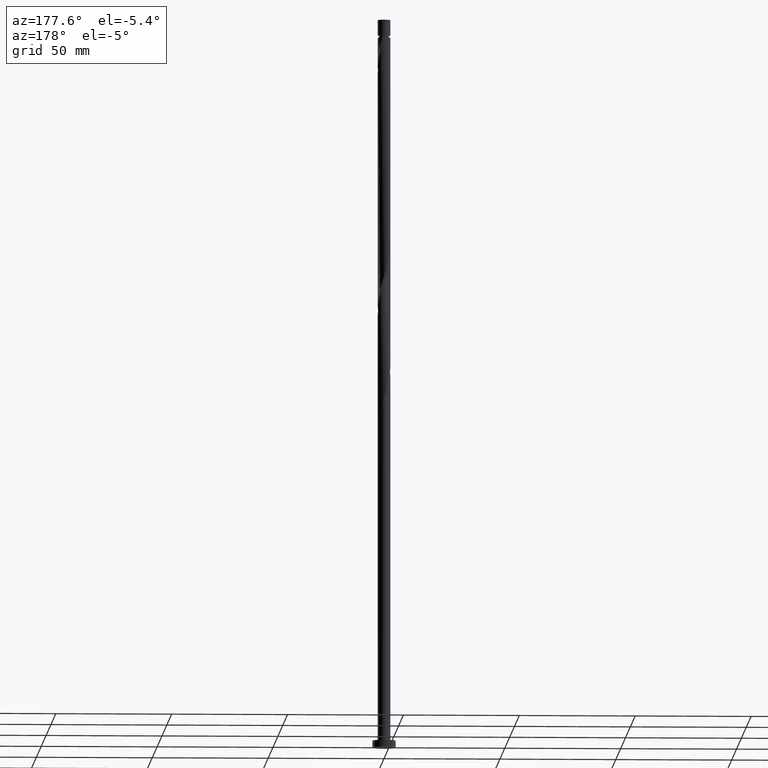
[diagram: clean part render]
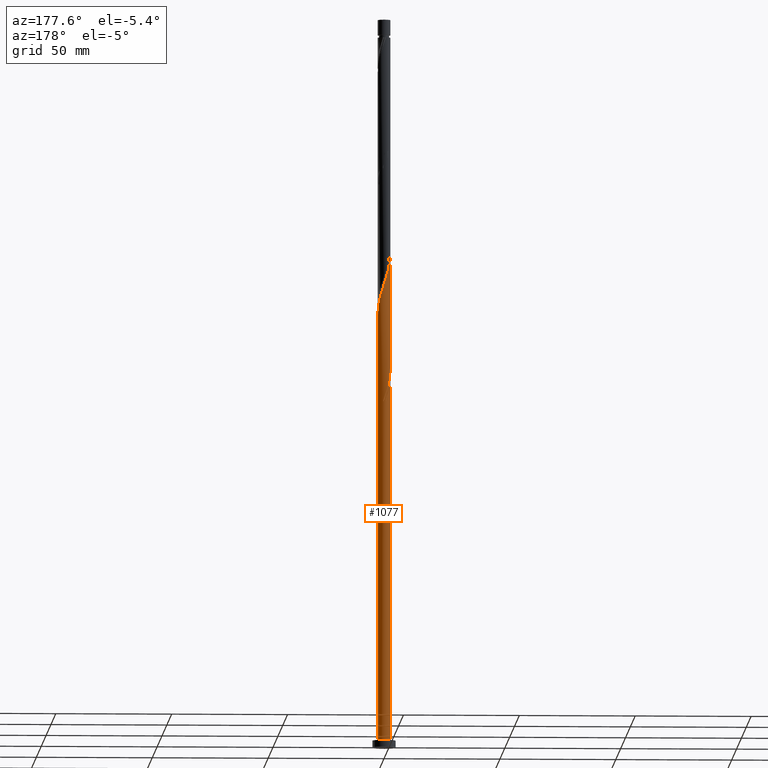
[diagram: same view with one face highlighted and labeled with its STEP entity id]
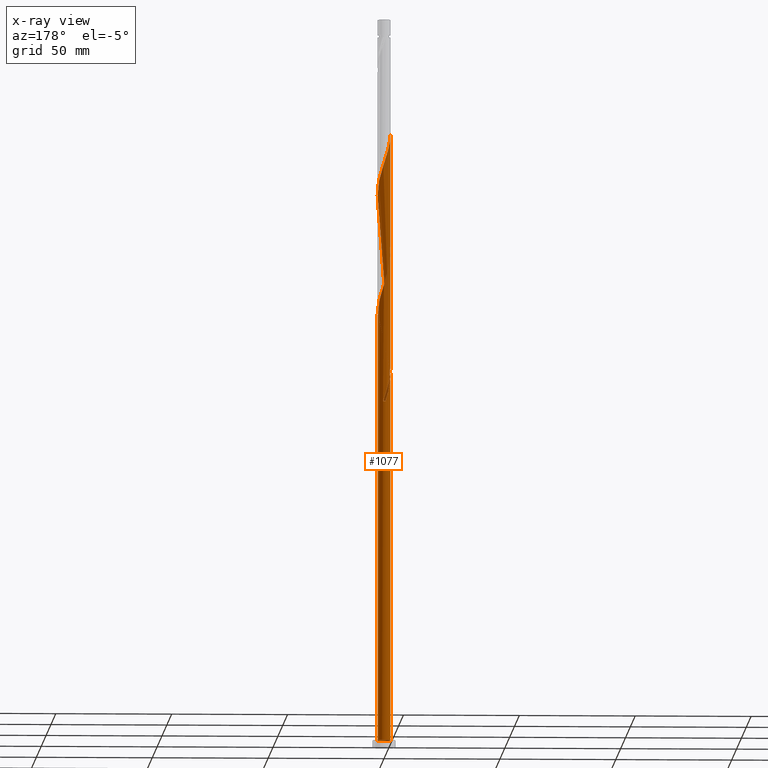
[diagram: x-ray of the same camera — body ghosted, the highlighted face saturated]
A machine part, auxiliary view. The second image highlights one B-rep face of the part: STEP entity #1077.
The next image is the same camera in x-ray: the body ghosted, the highlighted face saturated — about 0% of this face is hidden behind the body in this view.
In plain terms, the highlighted cylindrical surface (bore or boss wall) has radius 2.75 mm, axis along (-0, -0, -1).
Its self-contained STEP definition (entity closure, byte-faithful):
#8 = CARTESIAN_POINT ( 'NONE',  ( -0.8508966634394435902, 2.633340512163637737, 203.2838897088758188 ) ) ;
#33 = CARTESIAN_POINT ( 'NONE',  ( 2.589353908558133188, -0.9766031543515221180, 184.5338897088758188 ) ) ;
#49 = CARTESIAN_POINT ( 'NONE',  ( -2.665550977269772748, 0.6762676892889233349, 159.2213897088758756 ) ) ;
#53 = CARTESIAN_POINT ( 'NONE',  ( -2.750000000000000000, 0.000000000000000000, 3.000000000000000000 ) ) ;
#55 = CARTESIAN_POINT ( 'NONE',  ( -2.003367594109888739, -1.909195031348285720, 220.1588897088757903 ) ) ;
#68 = CARTESIAN_POINT ( 'NONE',  ( -2.448236331258788923, 1.252453139364712476, 157.3463897088758472 ) ) ;
#77 = CARTESIAN_POINT ( 'NONE',  ( 1.252453139364712920, 2.448236331258788034, 249.2213897088759040 ) ) ;
#99 = CARTESIAN_POINT ( 'NONE',  ( -1.662365664554718236, 2.190671220724271784, 206.0963897088758756 ) ) ;
#109 = CARTESIAN_POINT ( 'NONE',  ( -1.133216480600296228, 2.505657679751145839, 204.2213897088758756 ) ) ;
#115 = CARTESIAN_POINT ( 'NONE',  ( -2.448236331258788923, 1.252453139364712476, 262.3463897088759040 ) ) ;
#124 = ORIENTED_EDGE ( 'NONE', *, *, #1334, .F. ) ;
#125 = VECTOR ( 'NONE', #169, 1000.000000000000000 ) ;
#135 = CARTESIAN_POINT ( 'NONE',  ( -2.750000000000003997, -2.343346442879561564E-15, 161.2968726309698297 ) ) ;
#145 = CARTESIAN_POINT ( 'NONE',  ( 1.133216480600296228, -2.505657679751146727, 177.9713897088758756 ) ) ;
#151 = CARTESIAN_POINT ( 'NONE',  ( -2.589353908558133188, 0.9766031543515217850, 263.2838897088757903 ) ) ;
#154 = CARTESIAN_POINT ( 'NONE',  ( 2.307118753959442436, -1.528303124377901723, 182.6588897088757903 ) ) ;
#169 = DIRECTION ( 'NONE',  ( -0.000000000000000000, -0.000000000000000000, -1.000000000000000000 ) ) ;
#193 = CARTESIAN_POINT ( 'NONE',  ( -2.108156892653864745, 1.765835359243896452, 155.4713897088758756 ) ) ;
#194 = EDGE_CURVE ( 'NONE', #241, #947, #777, .T. ) ;
#212 = CARTESIAN_POINT ( 'NONE',  ( -0.5472430904086438286, 2.695000000000002505, 149.8463897088758472 ) ) ;
#213 = CARTESIAN_POINT ( 'NONE',  ( 1.909195031348285720, -2.003367594109888739, 233.2838897088757903 ) ) ;
#241 = VERTEX_POINT ( 'NONE', #346 ) ;
#247 = CARTESIAN_POINT ( 'NONE',  ( 1.765835359243896674, 2.108156892653864745, 247.3463897088758756 ) ) ;
#254 = CARTESIAN_POINT ( 'NONE',  ( -2.741748045981409643, 0.3759322242263234415, 212.6588897088757903 ) ) ;
#260 = CARTESIAN_POINT ( 'NONE',  ( 0.000000000000000000, 0.000000000000000000, 315.0000000000000000 ) ) ;
#273 = CARTESIAN_POINT ( 'NONE',  ( 0.3759322242263239966, 2.741748045981408310, 199.5338897088758188 ) ) ;
#281 = DIRECTION ( 'NONE',  ( -0.000000000000000000, -0.000000000000000000, -1.000000000000000000 ) ) ;
#298 = CARTESIAN_POINT ( 'NONE',  ( -1.252453139364712476, -2.448236331258788034, 170.4713897088759040 ) ) ;
#299 = EDGE_CURVE ( 'NONE', #711, #965, #1151, .T. ) ;
#319 = CARTESIAN_POINT ( 'NONE',  ( 1.415536297761148310, -2.377974847338651720, 178.9088897088758472 ) ) ;
#335 = CARTESIAN_POINT ( 'NONE',  ( 0.9766031543515225621, 2.589353908558133188, 250.1588897088757335 ) ) ;
#346 = CARTESIAN_POINT ( 'NONE',  ( 2.750000000000000000, 0.000000000000000000, 3.000000000000000000 ) ) ;
#347 = CARTESIAN_POINT ( 'NONE',  ( -2.505657679751145839, -1.133216480600296228, 217.3463897088759040 ) ) ;
#352 = CARTESIAN_POINT ( 'NONE',  ( -0.6762676892889212255, 2.665550977269768751, 153.5963897088758188 ) ) ;
#356 = CARTESIAN_POINT ( 'NONE',  ( -2.750000000000003997, -2.343346442879561564E-15, 161.2968726309698297 ) ) ;
#357 = CARTESIAN_POINT ( 'NONE',  ( -0.06617135342423963174, -2.749203766908889346, 226.7213897088758756 ) ) ;
#362 = CARTESIAN_POINT ( 'NONE',  ( -1.765835359243892677, 2.108156892653862080, 157.3463897088758472 ) ) ;
#368 = ORIENTED_EDGE ( 'NONE', *, *, #1259, .T. ) ;
#371 = CARTESIAN_POINT ( 'NONE',  ( -1.252453139364709367, 2.448236331258784926, 155.4713897088758756 ) ) ;
#374 = CARTESIAN_POINT ( 'NONE',  ( -1.415536297761148754, 2.377974847338651720, 205.1588897088758188 ) ) ;
#387 = CARTESIAN_POINT ( 'NONE',  ( 2.377974847338651720, 1.415536297761147866, 244.5338897088757903 ) ) ;
#388 = CARTESIAN_POINT ( 'NONE',  ( 0.8508966634394434791, -2.633340512163637737, 229.5338897088757619 ) ) ;
#390 = CARTESIAN_POINT ( 'NONE',  ( -1.909195031348286165, 2.003367594109888739, 207.0338897088757619 ) ) ;
#397 = CARTESIAN_POINT ( 'NONE',  ( 0.6762676892889234459, 2.665550977269772748, 251.0963897088758472 ) ) ;
#404 = CARTESIAN_POINT ( 'NONE',  ( -2.750000000000003997, -2.343346442879561564E-15, 161.2968726309698297 ) ) ;
#411 = CYLINDRICAL_SURFACE ( 'NONE', #768, 2.750000000000000000 ) ;
#416 = VERTEX_POINT ( 'NONE', #1403 ) ;
#420 = ORIENTED_EDGE ( 'NONE', *, *, #1027, .F. ) ;
#422 = CARTESIAN_POINT ( 'NONE',  ( 0.9766031543515225621, 2.589353908558133188, 197.6588897088758188 ) ) ;
#433 = CIRCLE ( 'NONE', #1117, 2.750000000000000000 ) ;
#434 = CARTESIAN_POINT ( 'NONE',  ( -0.2435895173778441503, 2.756659487836366829, 201.4088897088758188 ) ) ;
#444 = EDGE_CURVE ( 'NONE', #965, #947, #1253, .T. ) ;
#450 = CARTESIAN_POINT ( 'NONE',  ( -2.750000000000003109, 0.03309046720758679339, 266.1965099427447399 ) ) ;
#454 = DIRECTION ( 'NONE',  ( -0.000000000000000000, -0.000000000000000000, -1.000000000000000000 ) ) ;
#462 = CARTESIAN_POINT ( 'NONE',  ( 2.633340512163637737, 0.8508966634394432571, 190.1588897088758188 ) ) ;
#472 = CARTESIAN_POINT ( 'NONE',  ( -2.633340512163637737, -0.8508966634394435902, 216.4088897088757619 ) ) ;
#482 = CARTESIAN_POINT ( 'NONE',  ( -2.741748045981409643, 0.3759322242263234415, 160.1588897088757903 ) ) ;
#484 =( BOUNDED_CURVE ( )  B_SPLINE_CURVE ( 2, ( #807, #1633, #1309, #633, #1175, #931, #1207, #1039, #362, #523, #371, #791, #352, #1477, #912, #780, #767 ),
 .UNSPECIFIED., .F., .T. ) 
 B_SPLINE_CURVE_WITH_KNOTS ( ( 3, 2, 2, 2, 2, 2, 2, 2, 3 ),
 ( 0.9295303401299220836, 0.9375000000000000000, 0.9464285714285713969, 0.9553571428571429047, 0.9642857142857143016, 0.9732142857142856984, 0.9821428571428570953, 0.9910714285714286031, 1.000000000000000000 ),
 .UNSPECIFIED. ) 
 CURVE ( )  GEOMETRIC_REPRESENTATION_ITEM ( )  RATIONAL_B_SPLINE_CURVE ( ( 0.9079949616362152920, 0.9039886423360783407, 0.9090909090909452539, 0.9033747362666200154, 0.9090909090909452539, 0.9033747362666200154, 0.9090909090909452539, 0.9033747362666200154, 0.9090909090909452539, 0.9033747362666200154, 0.9090909090909452539, 0.9033747362666200154, 0.9090909090909452539, 0.9033747362666200154, 0.9090909090909452539, 0.9033747362666200154, 0.9090909090909452539 ) ) 
 REPRESENTATION_ITEM ( '' )  );
#499 = CARTESIAN_POINT ( 'NONE',  ( -2.589353908558133188, 0.9766031543515217850, 158.2838897088758188 ) ) ;
#501 = CARTESIAN_POINT ( 'NONE',  ( -1.528303124377901501, -2.307118753959442436, 222.0338897088757335 ) ) ;
#523 = CARTESIAN_POINT ( 'NONE',  ( -1.528303124377899946, 2.307118753959439772, 156.4088897088758472 ) ) ;
#526 = CARTESIAN_POINT ( 'NONE',  ( 2.749203766908889346, -0.06617135342423986766, 239.8463897088759040 ) ) ;
#537 = CARTESIAN_POINT ( 'NONE',  ( -2.633340512163637737, -0.8508966634394435902, 163.9088897088757903 ) ) ;
#541 = CARTESIAN_POINT ( 'NONE',  ( -2.108156892653864745, 1.765835359243896452, 207.9713897088758756 ) ) ;
#548 = CARTESIAN_POINT ( 'NONE',  ( 0.000000000000000000, 0.000000000000000000, 3.000000000000000000 ) ) ;
#557 = VERTEX_POINT ( 'NONE', #1802 ) ;
#560 = DIRECTION ( 'NONE',  ( 1.000000000000000000, 0.000000000000000000, 0.000000000000000000 ) ) ;
#573 = CARTESIAN_POINT ( 'NONE',  ( 2.749203766908889346, -0.06617135342423986766, 187.3463897088758472 ) ) ;
#587 = CARTESIAN_POINT ( 'NONE',  ( -2.108156892653864745, 1.765835359243896452, 260.4713897088759040 ) ) ;
#592 = CARTESIAN_POINT ( 'NONE',  ( 1.765835359243896674, 2.108156892653864745, 194.8463897088758756 ) ) ;
#599 = CARTESIAN_POINT ( 'NONE',  ( 2.756659487836366829, 0.2435895173778442335, 188.2838897088757619 ) ) ;
#621 = LINE ( 'NONE', #1570, #125 ) ;
#633 = CARTESIAN_POINT ( 'NONE',  ( -2.633340512163635072, 0.8508966634394432571, 162.0338897088758472 ) ) ;
#638 = CARTESIAN_POINT ( 'NONE',  ( -1.909195031348286165, 2.003367594109888739, 154.5338897088758188 ) ) ;
#659 = CARTESIAN_POINT ( 'NONE',  ( 2.695000000000002505, 0.5472430904086440506, 241.7213897088759325 ) ) ;
#663 = CARTESIAN_POINT ( 'NONE',  ( -2.003367594109888739, -1.909195031348285720, 167.6588897088758472 ) ) ;
#669 = CARTESIAN_POINT ( 'NONE',  ( -2.589353908558133188, 0.9766031543515217850, 210.7838897088757903 ) ) ;
#674 = FACE_OUTER_BOUND ( 'NONE', #1799, .T. ) ;
#687 = CARTESIAN_POINT ( 'NONE',  ( -2.750000000000002220, -0.2763853991962879064, 162.1351437099333737 ) ) ;
#693 = CARTESIAN_POINT ( 'NONE',  ( -2.307118753959442436, 1.528303124377901501, 261.4088897088757335 ) ) ;
#696 = CARTESIAN_POINT ( 'NONE',  ( 0.06617135342423995092, 2.749203766908889346, 200.4713897088759040 ) ) ;
#708 = CARTESIAN_POINT ( 'NONE',  ( -0.8508966634394435902, 2.633340512163637737, 255.7838897088757335 ) ) ;
#711 = VERTEX_POINT ( 'NONE', #1528 ) ;
#721 = CARTESIAN_POINT ( 'NONE',  ( -0.06617135342423963174, -2.749203766908889346, 174.2213897088758756 ) ) ;
#729 = CARTESIAN_POINT ( 'NONE',  ( 0.2435895173778444001, -2.756659487836365940, 227.6588897088757619 ) ) ;
#737 = CARTESIAN_POINT ( 'NONE',  ( 2.190671220724272672, 1.662365664554717792, 192.9713897088758756 ) ) ;
#745 = CARTESIAN_POINT ( 'NONE',  ( -2.307118753959442436, 1.528303124377901501, 156.4088897088757903 ) ) ;
#766 = VERTEX_POINT ( 'NONE', #1433 ) ;
#767 = CARTESIAN_POINT ( 'NONE',  ( 0.5472430904086447168, 2.694999999999998508, 149.8463897088758472 ) ) ;
#768 = AXIS2_PLACEMENT_3D ( 'NONE', #260, #281, #1387 ) ;
#770 = CARTESIAN_POINT ( 'NONE',  ( -1.662365664554718236, 2.190671220724271784, 153.5963897088759325 ) ) ;
#771 = CARTESIAN_POINT ( 'NONE',  ( 2.108156892653864745, -1.765835359243896674, 234.2213897088758756 ) ) ;
#777 = CIRCLE ( 'NONE', #1761, 2.750000000000000000 ) ;
#780 = CARTESIAN_POINT ( 'NONE',  ( 0.2435895173778448719, 2.756659487836362832, 150.7838897088758756 ) ) ;
#791 = CARTESIAN_POINT ( 'NONE',  ( -0.9766031543515204527, 2.589353908558131412, 154.5338897088758756 ) ) ;
#798 = ORIENTED_EDGE ( 'NONE', *, *, #194, .T. ) ;
#807 = CARTESIAN_POINT ( 'NONE',  ( -2.749999999999999556, 2.951571713881759338E-15, 164.6459067867818931 ) ) ;
#811 = CARTESIAN_POINT ( 'NONE',  ( 1.528303124377901723, 2.307118753959442436, 248.2838897088757903 ) ) ;
#814 = CARTESIAN_POINT ( 'NONE',  ( -1.765835359243896674, -2.108156892653864745, 168.5963897088758756 ) ) ;
#819 = CARTESIAN_POINT ( 'NONE',  ( -2.749203766908889346, 0.06617135342423942357, 213.5963897088758756 ) ) ;
#831 = AXIS2_PLACEMENT_3D ( 'NONE', #1012, #1715, #1587 ) ;
#842 = CARTESIAN_POINT ( 'NONE',  ( -1.415536297761148754, 2.377974847338651720, 257.6588897088757903 ) ) ;
#843 = CARTESIAN_POINT ( 'NONE',  ( 1.252453139364712920, 2.448236331258788034, 196.7213897088759040 ) ) ;
#850 = CARTESIAN_POINT ( 'NONE',  ( -2.750000000000003553, 1.899304680614166734E-15, 266.2968726309698013 ) ) ;
#854 = CARTESIAN_POINT ( 'NONE',  ( 0.5472430904086440506, -2.695000000000002505, 176.0963897088759040 ) ) ;
#857 = ORIENTED_EDGE ( 'NONE', *, *, #1132, .F. ) ;
#866 = CARTESIAN_POINT ( 'NONE',  ( -0.9766031543515221180, -2.589353908558133188, 171.4088897088757903 ) ) ;
#877 = CARTESIAN_POINT ( 'NONE',  ( 1.909195031348285720, -2.003367594109888739, 180.7838897088757903 ) ) ;
#886 = CARTESIAN_POINT ( 'NONE',  ( 0.8508966634394434791, -2.633340512163637737, 177.0338897088757619 ) ) ;
#900 = CARTESIAN_POINT ( 'NONE',  ( -1.765835359243896674, -2.108156892653864745, 221.0963897088758756 ) ) ;
#907 = CARTESIAN_POINT ( 'NONE',  ( -0.8508966634394435902, 2.633340512163637737, 150.7838897088757619 ) ) ;
#908 = CARTESIAN_POINT ( 'NONE',  ( -0.9766031543515221180, -2.589353908558133188, 223.9088897088757619 ) ) ;
#912 = CARTESIAN_POINT ( 'NONE',  ( -0.06617135342423884070, 2.749203766908884905, 151.7213897088758472 ) ) ;
#915 = CARTESIAN_POINT ( 'NONE',  ( 0.5472430904086440506, -2.695000000000002505, 228.5963897088758756 ) ) ;
#923 = CARTESIAN_POINT ( 'NONE',  ( 1.415536297761148310, -2.377974847338651720, 231.4088897088757903 ) ) ;
#931 = CARTESIAN_POINT ( 'NONE',  ( -2.377974847338649944, 1.415536297761147866, 160.1588897088758756 ) ) ;
#947 = VERTEX_POINT ( 'NONE', #53 ) ;
#954 = CARTESIAN_POINT ( 'NONE',  ( 2.003367594109889183, 1.909195031348285498, 246.4088897088757619 ) ) ;
#965 = VERTEX_POINT ( 'NONE', #404 ) ;
#981 = CARTESIAN_POINT ( 'NONE',  ( -0.5472430904086439396, 2.695000000000002505, 254.8463897088759040 ) ) ;
#983 = ORIENTED_EDGE ( 'NONE', *, *, #444, .T. ) ;
#1002 = CARTESIAN_POINT ( 'NONE',  ( -1.662365664554718236, 2.190671220724271784, 258.5963897088759040 ) ) ;
#1012 = CARTESIAN_POINT ( 'NONE',  ( 0.000000000000000000, 0.000000000000000000, 3.000000000000000000 ) ) ;
#1027 = EDGE_CURVE ( 'NONE', #965, #557, #1453, .T. ) ;
#1030 = CARTESIAN_POINT ( 'NONE',  ( -2.750000000000003997, 0.03309046720756954330, 161.1965099427447399 ) ) ;
#1031 = CARTESIAN_POINT ( 'NONE',  ( -2.190671220724271784, -1.662365664554717792, 219.2213897088758756 ) ) ;
#1036 = CARTESIAN_POINT ( 'NONE',  ( -2.377974847338651720, -1.415536297761148310, 218.2838897088757903 ) ) ;
#1039 = CARTESIAN_POINT ( 'NONE',  ( -2.003367594109886074, 1.909195031348284610, 158.2838897088758472 ) ) ;
#1060 = CARTESIAN_POINT ( 'NONE',  ( 2.307118753959442436, -1.528303124377901723, 235.1588897088757051 ) ) ;
#1077 = ADVANCED_FACE ( 'NONE', ( #674 ), #411, .T. ) ;
#1093 = CARTESIAN_POINT ( 'NONE',  ( -2.448236331258788923, 1.252453139364712476, 209.8463897088759325 ) ) ;
#1113 = CARTESIAN_POINT ( 'NONE',  ( 2.505657679751146727, 1.133216480600296228, 191.0963897088758756 ) ) ;
#1117 = AXIS2_PLACEMENT_3D ( 'NONE', #1421, #1569, #1677 ) ;
#1120 = CARTESIAN_POINT ( 'NONE',  ( -2.750000000000000000, 0.000000000000000000, 315.0000000000000000 ) ) ;
#1127 = CARTESIAN_POINT ( 'NONE',  ( -2.749203766908889346, 0.06617135342423942357, 266.0963897088759609 ) ) ;
#1132 = EDGE_CURVE ( 'NONE', #557, #766, #621, .T. ) ;
#1141 = CARTESIAN_POINT ( 'NONE',  ( 2.695000000000002505, 0.5472430904086440506, 189.2213897088759325 ) ) ;
#1145 = CARTESIAN_POINT ( 'NONE',  ( 0.3759322242263239966, 2.741748045981408310, 252.0338897088757335 ) ) ;
#1150 = CARTESIAN_POINT ( 'NONE',  ( 1.528303124377901723, 2.307118753959442436, 195.7838897088758756 ) ) ;
#1151 =( BOUNDED_CURVE ( )  B_SPLINE_CURVE ( 2, ( #212, #907, #1431, #1282, #770, #638, #193, #745, #68, #499, #49, #482, #1160, #1030, #356 ),
 .UNSPECIFIED., .F., .T. ) 
 B_SPLINE_CURVE_WITH_KNOTS ( ( 3, 2, 2, 2, 2, 2, 2, 3 ),
 ( 0.000000000000000000, 0.008928571428571396851, 0.01785714285714290472, 0.02678571428571430157, 0.03571428571428569843, 0.04464285714285709528, 0.05357142857142860315, 0.05453034012992214602 ),
 .UNSPECIFIED. ) 
 CURVE ( )  GEOMETRIC_REPRESENTATION_ITEM ( )  RATIONAL_B_SPLINE_CURVE ( ( 0.9090909090909509160, 0.9033747362666260106, 0.9090909090909509160, 0.9033747362666260106, 0.9090909090909509160, 0.9033747362666260106, 0.9090909090909509160, 0.9033747362666260106, 0.9090909090909509160, 0.9033747362666260106, 0.9090909090909509160, 0.9033747362666260106, 0.9090909090909509160, 0.9084770030214925907, 0.9079949616362208431 ) ) 
 REPRESENTATION_ITEM ( '' )  );
#1160 = CARTESIAN_POINT ( 'NONE',  ( -2.749203766908889346, 0.06617135342423942357, 161.0963897088759040 ) ) ;
#1175 = CARTESIAN_POINT ( 'NONE',  ( -2.505657679751142286, 1.133216480600295117, 161.0963897088758756 ) ) ;
#1200 = CARTESIAN_POINT ( 'NONE',  ( 2.633340512163637737, 0.8508966634394432571, 242.6588897088757903 ) ) ;
#1203 = CARTESIAN_POINT ( 'NONE',  ( -0.2435895173778441503, 2.756659487836366829, 253.9088897088757051 ) ) ;
#1207 = CARTESIAN_POINT ( 'NONE',  ( -2.190671220724267787, 1.662365664554715794, 159.2213897088758472 ) ) ;
#1211 = CARTESIAN_POINT ( 'NONE',  ( 2.190671220724272672, 1.662365664554717792, 245.4713897088758756 ) ) ;
#1222 = CARTESIAN_POINT ( 'NONE',  ( -2.756659487836365940, -0.2435895173778445943, 214.5338897088757619 ) ) ;
#1229 = CARTESIAN_POINT ( 'NONE',  ( -2.665550977269772748, 0.6762676892889233349, 264.2213897088759040 ) ) ;
#1234 = CARTESIAN_POINT ( 'NONE',  ( -2.695000000000002505, -0.5472430904086440506, 162.9713897088758472 ) ) ;
#1252 = CARTESIAN_POINT ( 'NONE',  ( -1.133216480600296228, 2.505657679751145839, 256.7213897088759040 ) ) ;
#1253 = LINE ( 'NONE', #1120, #1789 ) ;
#1259 = EDGE_CURVE ( 'NONE', #947, #241, #1612, .T. ) ;
#1266 = CARTESIAN_POINT ( 'NONE',  ( 2.665550977269772748, -0.6762676892889233349, 185.4713897088758756 ) ) ;
#1275 = CARTESIAN_POINT ( 'NONE',  ( 1.662365664554717792, -2.190671220724271784, 179.8463897088758472 ) ) ;
#1282 = CARTESIAN_POINT ( 'NONE',  ( -1.415536297761148754, 2.377974847338651720, 152.6588897088758188 ) ) ;
#1284 = CARTESIAN_POINT ( 'NONE',  ( 2.003367594109889183, 1.909195031348285498, 193.9088897088757903 ) ) ;
#1306 = CARTESIAN_POINT ( 'NONE',  ( 0.06617135342423995092, 2.749203766908889346, 252.9713897088759325 ) ) ;
#1309 = CARTESIAN_POINT ( 'NONE',  ( -2.694999999999998952, 0.5472430904086440506, 162.9713897088758472 ) ) ;
#1332 = CARTESIAN_POINT ( 'NONE',  ( 2.741748045981408310, -0.3759322242263239411, 238.9088897088757903 ) ) ;
#1334 = EDGE_CURVE ( 'NONE', #766, #416, #484, .T. ) ;
#1350 = CARTESIAN_POINT ( 'NONE',  ( 1.133216480600296228, -2.505657679751146727, 230.4713897088759040 ) ) ;
#1351 = CARTESIAN_POINT ( 'NONE',  ( -2.307118753959442436, 1.528303124377901501, 208.9088897088757903 ) ) ;
#1355 = CARTESIAN_POINT ( 'NONE',  ( -1.528303124377901501, -2.307118753959442436, 169.5338897088758188 ) ) ;
#1360 = CARTESIAN_POINT ( 'NONE',  ( 2.448236331258788034, -1.252453139364712920, 236.0963897088759040 ) ) ;
#1368 = ORIENTED_EDGE ( 'NONE', *, *, #299, .F. ) ;
#1379 = CARTESIAN_POINT ( 'NONE',  ( -0.6762676892889233349, -2.665550977269772748, 172.3463897088759040 ) ) ;
#1387 = DIRECTION ( 'NONE',  ( -1.000000000000000000, 0.000000000000000000, 0.000000000000000000 ) ) ;
#1389 = CARTESIAN_POINT ( 'NONE',  ( 2.741748045981408310, -0.3759322242263239411, 186.4088897088758188 ) ) ;
#1403 = CARTESIAN_POINT ( 'NONE',  ( 0.5472430904086446057, 2.694999999999998508, 149.8463897088758472 ) ) ;
#1411 = ORIENTED_EDGE ( 'NONE', *, *, #1716, .T. ) ;
#1416 = CARTESIAN_POINT ( 'NONE',  ( 2.108156892653864745, -1.765835359243896674, 181.7213897088759040 ) ) ;
#1421 = CARTESIAN_POINT ( 'NONE',  ( 0.000000000000000000, 0.000000000000000000, 149.8463897088758472 ) ) ;
#1424 = CARTESIAN_POINT ( 'NONE',  ( -2.695000000000002505, -0.5472430904086440506, 215.4713897088759040 ) ) ;
#1425 = CARTESIAN_POINT ( 'NONE',  ( 2.377974847338651720, 1.415536297761147866, 192.0338897088758188 ) ) ;
#1431 = CARTESIAN_POINT ( 'NONE',  ( -1.133216480600296228, 2.505657679751145839, 151.7213897088758472 ) ) ;
#1433 = CARTESIAN_POINT ( 'NONE',  ( -2.749999999999999556, 2.951571713881759338E-15, 164.6459067867818931 ) ) ;
#1447 = CARTESIAN_POINT ( 'NONE',  ( -0.6762676892889233349, -2.665550977269772748, 224.8463897088759040 ) ) ;
#1453 =( BOUNDED_CURVE ( )  B_SPLINE_CURVE ( 2, ( #135, #687, #1234, #537, #1498, #1665, #1483, #663, #814, #1355, #298, #866, #1379, #1700, #721, #1672, #854, #886, #145, #319, #1275, #877, #1416, #154, #1554, #33, #1266, #1389, #573, #599, #1141, #462, #1113, #1425, #737, #1284, #592, #1150, #843, #422, #1521, #273, #696, #434, #1529, #8, #109, #374, #99, #390, #541, #1351, #1093, #669, #1504, #254, #819, #1222, #1424, #472, #347, #1036, #1031, #55, #900, #501, #1720, #908, #1447, #1598, #357, #729, #915, #388, #1350, #923, #1748, #213, #771, #1060, #1360, #1597, #1643, #1332, #526, #1485, #659, #1200, #1772, #387, #1211, #954, #247, #811, #77, #335, #397, #1145, #1306, #1203, #981, #708, #1252, #842, #1002, #1662, #587, #693, #115, #151, #1229, #1793, #1127, #450, #850 ),
 .UNSPECIFIED., .F., .T. ) 
 B_SPLINE_CURVE_WITH_KNOTS ( ( 3, 2, 2, 2, 2, 2, 2, 2, 2, 2, 2, 2, 2, 2, 2, 2, 2, 2, 2, 2, 2, 2, 2, 2, 2, 2, 2, 2, 2, 2, 2, 2, 2, 2, 2, 2, 2, 2, 2, 2, 2, 2, 2, 2, 2, 2, 2, 2, 2, 2, 2, 2, 2, 2, 2, 2, 2, 3 ),
 ( 0.05453034012992213908, 0.06250000000000000000, 0.07142857142857139685, 0.08035714285714290472, 0.08928571428571430157, 0.09821428571428569843, 0.1071428571428570953, 0.1160714285714286031, 0.1250000000000000000, 0.1339285714285713969, 0.1428571428571429047, 0.1517857142857143016, 0.1607142857142856984, 0.1696428571428570953, 0.1785714285714286031, 0.1875000000000000000, 0.1964285714285713969, 0.2053571428571429047, 0.2142857142857143016, 0.2232142857142856984, 0.2321428571428570953, 0.2410714285714286031, 0.2500000000000000000, 0.2589285714285713969, 0.2678571428571429047, 0.2767857142857143016, 0.2857142857142856984, 0.2946428571428570953, 0.3035714285714286031, 0.3125000000000000000, 0.3214285714285713969, 0.3303571428571429047, 0.3392857142857143016, 0.3482142857142856984, 0.3571428571428570953, 0.3660714285714286031, 0.3750000000000000000, 0.3839285714285713969, 0.3928571428571429047, 0.4017857142857143016, 0.4107142857142856984, 0.4196428571428570953, 0.4285714285714286031, 0.4375000000000000000, 0.4464285714285713969, 0.4553571428571429047, 0.4642857142857143016, 0.4732142857142856984, 0.4821428571428570953, 0.4910714285714286031, 0.5000000000000000000, 0.5089285714285713969, 0.5178571428571427937, 0.5267857142857143016, 0.5357142857142856984, 0.5446428571428572063, 0.5535714285714286031, 0.5545303401299216395 ),
 .UNSPECIFIED. ) 
 CURVE ( )  GEOMETRIC_REPRESENTATION_ITEM ( )  RATIONAL_B_SPLINE_CURVE ( ( 0.9079949616362208431, 0.9039886423360843359, 0.9090909090909509160, 0.9033747362666260106, 0.9090909090909509160, 0.9033747362666260106, 0.9090909090909509160, 0.9033747362666260106, 0.9090909090909509160, 0.9033747362666260106, 0.9090909090909509160, 0.9033747362666260106, 0.9090909090909509160, 0.9033747362666260106, 0.9090909090909509160, 0.9033747362666260106, 0.9090909090909509160, 0.9033747362666260106, 0.9090909090909509160, 0.9033747362666260106, 0.9090909090909509160, 0.9033747362666260106, 0.9090909090909509160, 0.9033747362666260106, 0.9090909090909509160, 0.9033747362666260106, 0.9090909090909509160, 0.9033747362666260106, 0.9090909090909509160, 0.9033747362666260106, 0.9090909090909509160, 0.9033747362666260106, 0.9090909090909509160, 0.9033747362666260106, 0.9090909090909509160, 0.9033747362666260106, 0.9090909090909509160, 0.9033747362666260106, 0.9090909090909509160, 0.9033747362666260106, 0.9090909090909509160, 0.9033747362666260106, 0.9090909090909509160, 0.9033747362666260106, 0.9090909090909509160, 0.9033747362666260106, 0.9090909090909509160, 0.9033747362666260106, 0.9090909090909509160, 0.9033747362666260106, 0.9090909090909509160, 0.9033747362666260106, 0.9090909090909509160, 0.9033747362666260106, 0.9090909090909509160, 0.9033747362666260106, 0.9090909090909509160, 0.9033747362666260106, 0.9090909090909509160, 0.9033747362666260106, 0.9090909090909509160, 0.9033747362666260106, 0.9090909090909509160, 0.9033747362666260106, 0.9090909090909509160, 0.9033747362666260106, 0.9090909090909509160, 0.9033747362666260106, 0.9090909090909509160, 0.9033747362666260106, 0.9090909090909509160, 0.9033747362666260106, 0.9090909090909509160, 0.9033747362666260106, 0.9090909090909509160, 0.9033747362666260106, 0.9090909090909509160, 0.9033747362666260106, 0.9090909090909509160, 0.9033747362666260106, 0.9090909090909509160, 0.9033747362666260106, 0.9090909090909509160, 0.9033747362666260106, 0.9090909090909509160, 0.9033747362666260106, 0.9090909090909509160, 0.9033747362666260106, 0.9090909090909509160, 0.9033747362666260106, 0.9090909090909509160, 0.9033747362666260106, 0.9090909090909509160, 0.9033747362666260106, 0.9090909090909509160, 0.9033747362666260106, 0.9090909090909509160, 0.9033747362666260106, 0.9090909090909509160, 0.9033747362666260106, 0.9090909090909509160, 0.9033747362666260106, 0.9090909090909509160, 0.9033747362666260106, 0.9090909090909509160, 0.9033747362666260106, 0.9090909090909509160, 0.9033747362666260106, 0.9090909090909509160, 0.9033747362666260106, 0.9090909090909509160, 0.9033747362666260106, 0.9090909090909509160, 0.9084770030214929237, 0.9079949616362215092 ) ) 
 REPRESENTATION_ITEM ( '' )  );
#1477 = CARTESIAN_POINT ( 'NONE',  ( -0.3759322242263226088, 2.741748045981406090, 152.6588897088758188 ) ) ;
#1483 = CARTESIAN_POINT ( 'NONE',  ( -2.190671220724271784, -1.662365664554717792, 166.7213897088759325 ) ) ;
#1485 = CARTESIAN_POINT ( 'NONE',  ( 2.756659487836366829, 0.2435895173778442335, 240.7838897088757335 ) ) ;
#1498 = CARTESIAN_POINT ( 'NONE',  ( -2.505657679751145839, -1.133216480600296228, 164.8463897088758756 ) ) ;
#1500 = ORIENTED_EDGE ( 'NONE', *, *, #444, .F. ) ;
#1504 = CARTESIAN_POINT ( 'NONE',  ( -2.665550977269772748, 0.6762676892889233349, 211.7213897088758472 ) ) ;
#1521 = CARTESIAN_POINT ( 'NONE',  ( 0.6762676892889234459, 2.665550977269772748, 198.5963897088758188 ) ) ;
#1528 = CARTESIAN_POINT ( 'NONE',  ( -0.5472430904086438286, 2.695000000000002949, 149.8463897088758472 ) ) ;
#1529 = CARTESIAN_POINT ( 'NONE',  ( -0.5472430904086439396, 2.695000000000002505, 202.3463897088759040 ) ) ;
#1543 = DIRECTION ( 'NONE',  ( 0.000000000000000000, 0.000000000000000000, 1.000000000000000000 ) ) ;
#1554 = CARTESIAN_POINT ( 'NONE',  ( 2.448236331258788034, -1.252453139364712920, 183.5963897088759040 ) ) ;
#1569 = DIRECTION ( 'NONE',  ( 0.000000000000000000, -0.000000000000000000, -1.000000000000000000 ) ) ;
#1570 = CARTESIAN_POINT ( 'NONE',  ( -2.750000000000000000, 0.000000000000000000, 315.0000000000000000 ) ) ;
#1587 = DIRECTION ( 'NONE',  ( 1.000000000000000000, 0.000000000000000000, 0.000000000000000000 ) ) ;
#1597 = CARTESIAN_POINT ( 'NONE',  ( 2.589353908558133188, -0.9766031543515221180, 237.0338897088757903 ) ) ;
#1598 = CARTESIAN_POINT ( 'NONE',  ( -0.3759322242263236635, -2.741748045981409643, 225.7838897088758188 ) ) ;
#1612 = CIRCLE ( 'NONE', #831, 2.750000000000000000 ) ;
#1633 = CARTESIAN_POINT ( 'NONE',  ( -2.749999999999999112, 0.2763853991962864076, 163.8076357078182923 ) ) ;
#1643 = CARTESIAN_POINT ( 'NONE',  ( 2.665550977269772748, -0.6762676892889233349, 237.9713897088758756 ) ) ;
#1662 = CARTESIAN_POINT ( 'NONE',  ( -1.909195031348286165, 2.003367594109888739, 259.5338897088757903 ) ) ;
#1665 = CARTESIAN_POINT ( 'NONE',  ( -2.377974847338651720, -1.415536297761148310, 165.7838897088757619 ) ) ;
#1672 = CARTESIAN_POINT ( 'NONE',  ( 0.2435895173778444001, -2.756659487836365940, 175.1588897088758188 ) ) ;
#1677 = DIRECTION ( 'NONE',  ( -1.000000000000000000, 0.000000000000000000, 0.000000000000000000 ) ) ;
#1700 = CARTESIAN_POINT ( 'NONE',  ( -0.3759322242263236635, -2.741748045981409643, 173.2838897088758188 ) ) ;
#1715 = DIRECTION ( 'NONE',  ( 0.000000000000000000, 0.000000000000000000, 1.000000000000000000 ) ) ;
#1716 = EDGE_CURVE ( 'NONE', #711, #416, #433, .T. ) ;
#1720 = CARTESIAN_POINT ( 'NONE',  ( -1.252453139364712476, -2.448236331258788034, 222.9713897088759040 ) ) ;
#1748 = CARTESIAN_POINT ( 'NONE',  ( 1.662365664554717792, -2.190671220724271784, 232.3463897088758756 ) ) ;
#1761 = AXIS2_PLACEMENT_3D ( 'NONE', #548, #1543, #560 ) ;
#1772 = CARTESIAN_POINT ( 'NONE',  ( 2.505657679751146727, 1.133216480600296228, 243.5963897088759040 ) ) ;
#1789 = VECTOR ( 'NONE', #454, 1000.000000000000000 ) ;
#1793 = CARTESIAN_POINT ( 'NONE',  ( -2.741748045981409643, 0.3759322242263234415, 265.1588897088757335 ) ) ;
#1799 = EDGE_LOOP ( 'NONE', ( #857, #420, #983, #368, #798, #1500, #1368, #1411, #124 ) ) ;
#1802 = CARTESIAN_POINT ( 'NONE',  ( -2.750000000000003553, 1.899304680614166734E-15, 266.2968726309698013 ) ) ;